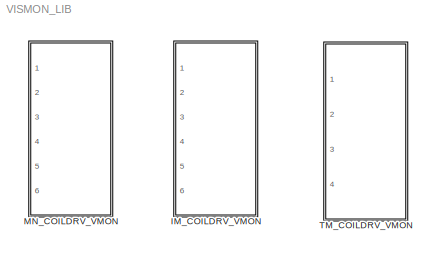
MODEL VISMON_LIB
KIND library
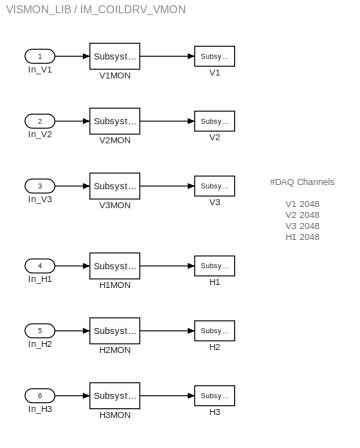
BLOCK [SubSystem] IM_COILDRV_VMON
  Ports = [6]
  RequestExecContextInheritance = off
  SID = 28
  Variant = off
BLOCK [Reference] IM_COILDRV_VMON/H1  REF=cdsTP/Subsystem
  AttributesFormatString = %<Tag>
  Ports = [1]
  SID = 16
  SourceBlock = cdsTP/Subsystem
  SourceType = SubSystem
  Tag = Test Point
BLOCK [Reference] IM_COILDRV_VMON/H1MON  REF=cdsEpicsOut/Subsystem
  AttributesFormatString = %<Tag>
  Description = Purpose:                                          \nOutput a FE signal to an EPICS channel.           \n                                                  \nOperation:                                        \nTakes input value and passes it to EPICS record.  \n                                                  \nUsage:                                            \nName the part with the desired EPICS...<+14ch>  <repeated x16 — deduplicated; at blocks: H1MON, H2MON, H3MON, V1MON, V2MON, V3MON, H4MON>
  Ports = [1, 1]
  SID = 17
  SourceBlock = cdsEpicsOut/Subsystem
  SourceType = SubSystem
  Tag = cdsEpicsOutput
BLOCK [Reference] IM_COILDRV_VMON/H2  REF=cdsTP/Subsystem
  AttributesFormatString = %<Tag>
  Ports = [1]
  SID = 18
  SourceBlock = cdsTP/Subsystem
  SourceType = SubSystem
  Tag = Test Point
BLOCK [Reference] IM_COILDRV_VMON/H2MON  REF=cdsEpicsOut/Subsystem
  AttributesFormatString = %<Tag>
  Ports = [1, 1]
  SID = 19
  SourceBlock = cdsEpicsOut/Subsystem
  SourceType = SubSystem
  Tag = cdsEpicsOutput
BLOCK [Reference] IM_COILDRV_VMON/H3  REF=cdsTP/Subsystem
  AttributesFormatString = %<Tag>
  Ports = [1]
  SID = 20
  SourceBlock = cdsTP/Subsystem
  SourceType = SubSystem
  Tag = Test Point
BLOCK [Reference] IM_COILDRV_VMON/H3MON  REF=cdsEpicsOut/Subsystem
  AttributesFormatString = %<Tag>
  Ports = [1, 1]
  SID = 21
  SourceBlock = cdsEpicsOut/Subsystem
  SourceType = SubSystem
  Tag = cdsEpicsOutput
BLOCK [Inport] IM_COILDRV_VMON/In_H1
  IconDisplay = Port number
  Port = 4
  SID = 32
BLOCK [Inport] IM_COILDRV_VMON/In_H2
  IconDisplay = Port number
  Port = 5
  SID = 33
BLOCK [Inport] IM_COILDRV_VMON/In_H3
  IconDisplay = Port number
  Port = 6
  SID = 34
BLOCK [Inport] IM_COILDRV_VMON/In_V1
  IconDisplay = Port number
  SID = 29
BLOCK [Inport] IM_COILDRV_VMON/In_V2
  IconDisplay = Port number
  Port = 2
  SID = 30
BLOCK [Inport] IM_COILDRV_VMON/In_V3
  IconDisplay = Port number
  Port = 3
  SID = 31
BLOCK [Reference] IM_COILDRV_VMON/V1  REF=cdsTP/Subsystem
  AttributesFormatString = %<Tag>
  Ports = [1]
  SID = 22
  SourceBlock = cdsTP/Subsystem
  SourceType = SubSystem
  Tag = Test Point
BLOCK [Reference] IM_COILDRV_VMON/V1MON  REF=cdsEpicsOut/Subsystem
  AttributesFormatString = %<Tag>
  Ports = [1, 1]
  SID = 23
  SourceBlock = cdsEpicsOut/Subsystem
  SourceType = SubSystem
  Tag = cdsEpicsOutput
BLOCK [Reference] IM_COILDRV_VMON/V2  REF=cdsTP/Subsystem
  AttributesFormatString = %<Tag>
  Ports = [1]
  SID = 24
  SourceBlock = cdsTP/Subsystem
  SourceType = SubSystem
  Tag = Test Point
BLOCK [Reference] IM_COILDRV_VMON/V2MON  REF=cdsEpicsOut/Subsystem
  AttributesFormatString = %<Tag>
  Ports = [1, 1]
  SID = 25
  SourceBlock = cdsEpicsOut/Subsystem
  SourceType = SubSystem
  Tag = cdsEpicsOutput
BLOCK [Reference] IM_COILDRV_VMON/V3  REF=cdsTP/Subsystem
  AttributesFormatString = %<Tag>
  Ports = [1]
  SID = 26
  SourceBlock = cdsTP/Subsystem
  SourceType = SubSystem
  Tag = Test Point
BLOCK [Reference] IM_COILDRV_VMON/V3MON  REF=cdsEpicsOut/Subsystem
  AttributesFormatString = %<Tag>
  Ports = [1, 1]
  SID = 27
  SourceBlock = cdsEpicsOut/Subsystem
  SourceType = SubSystem
  Tag = cdsEpicsOutput
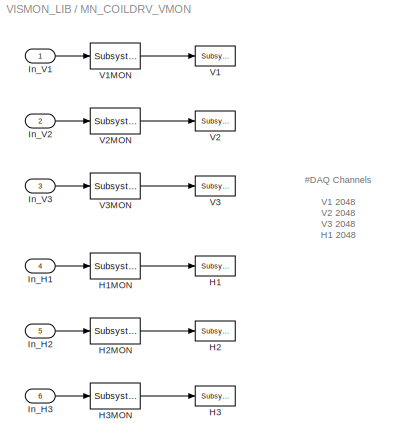
BLOCK [SubSystem] MN_COILDRV_VMON
  Ports = [6]
  RequestExecContextInheritance = off
  SID = 35
  Variant = off
BLOCK [Reference] MN_COILDRV_VMON/H1  REF=cdsTP/Subsystem
  AttributesFormatString = %<Tag>
  Ports = [1]
  SID = 42
  SourceBlock = cdsTP/Subsystem
  SourceType = SubSystem
  Tag = Test Point
BLOCK [Reference] MN_COILDRV_VMON/H1MON  REF=cdsEpicsOut/Subsystem
  AttributesFormatString = %<Tag>
  Ports = [1, 1]
  SID = 43
  SourceBlock = cdsEpicsOut/Subsystem
  SourceType = SubSystem
  Tag = cdsEpicsOutput
BLOCK [Reference] MN_COILDRV_VMON/H2  REF=cdsTP/Subsystem
  AttributesFormatString = %<Tag>
  Ports = [1]
  SID = 44
  SourceBlock = cdsTP/Subsystem
  SourceType = SubSystem
  Tag = Test Point
BLOCK [Reference] MN_COILDRV_VMON/H2MON  REF=cdsEpicsOut/Subsystem
  AttributesFormatString = %<Tag>
  Ports = [1, 1]
  SID = 45
  SourceBlock = cdsEpicsOut/Subsystem
  SourceType = SubSystem
  Tag = cdsEpicsOutput
BLOCK [Reference] MN_COILDRV_VMON/H3  REF=cdsTP/Subsystem
  AttributesFormatString = %<Tag>
  Ports = [1]
  SID = 46
  SourceBlock = cdsTP/Subsystem
  SourceType = SubSystem
  Tag = Test Point
BLOCK [Reference] MN_COILDRV_VMON/H3MON  REF=cdsEpicsOut/Subsystem
  AttributesFormatString = %<Tag>
  Ports = [1, 1]
  SID = 47
  SourceBlock = cdsEpicsOut/Subsystem
  SourceType = SubSystem
  Tag = cdsEpicsOutput
BLOCK [Inport] MN_COILDRV_VMON/In_H1
  IconDisplay = Port number
  Port = 4
  SID = 39
BLOCK [Inport] MN_COILDRV_VMON/In_H2
  IconDisplay = Port number
  Port = 5
  SID = 40
BLOCK [Inport] MN_COILDRV_VMON/In_H3
  IconDisplay = Port number
  Port = 6
  SID = 41
BLOCK [Inport] MN_COILDRV_VMON/In_V1
  IconDisplay = Port number
  SID = 36
BLOCK [Inport] MN_COILDRV_VMON/In_V2
  IconDisplay = Port number
  Port = 2
  SID = 37
BLOCK [Inport] MN_COILDRV_VMON/In_V3
  IconDisplay = Port number
  Port = 3
  SID = 38
BLOCK [Reference] MN_COILDRV_VMON/V1  REF=cdsTP/Subsystem
  AttributesFormatString = %<Tag>
  Ports = [1]
  SID = 48
  SourceBlock = cdsTP/Subsystem
  SourceType = SubSystem
  Tag = Test Point
BLOCK [Reference] MN_COILDRV_VMON/V1MON  REF=cdsEpicsOut/Subsystem
  AttributesFormatString = %<Tag>
  Ports = [1, 1]
  SID = 49
  SourceBlock = cdsEpicsOut/Subsystem
  SourceType = SubSystem
  Tag = cdsEpicsOutput
BLOCK [Reference] MN_COILDRV_VMON/V2  REF=cdsTP/Subsystem
  AttributesFormatString = %<Tag>
  Ports = [1]
  SID = 50
  SourceBlock = cdsTP/Subsystem
  SourceType = SubSystem
  Tag = Test Point
BLOCK [Reference] MN_COILDRV_VMON/V2MON  REF=cdsEpicsOut/Subsystem
  AttributesFormatString = %<Tag>
  Ports = [1, 1]
  SID = 51
  SourceBlock = cdsEpicsOut/Subsystem
  SourceType = SubSystem
  Tag = cdsEpicsOutput
BLOCK [Reference] MN_COILDRV_VMON/V3  REF=cdsTP/Subsystem
  AttributesFormatString = %<Tag>
  Ports = [1]
  SID = 52
  SourceBlock = cdsTP/Subsystem
  SourceType = SubSystem
  Tag = Test Point
BLOCK [Reference] MN_COILDRV_VMON/V3MON  REF=cdsEpicsOut/Subsystem
  AttributesFormatString = %<Tag>
  Ports = [1, 1]
  SID = 53
  SourceBlock = cdsEpicsOut/Subsystem
  SourceType = SubSystem
  Tag = cdsEpicsOutput
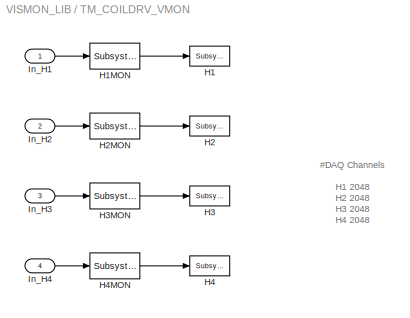
BLOCK [SubSystem] TM_COILDRV_VMON
  Ports = [4]
  RequestExecContextInheritance = off
  SID = 54
  Variant = off
BLOCK [Reference] TM_COILDRV_VMON/H1  REF=cdsTP/Subsystem
  AttributesFormatString = %<Tag>
  Ports = [1]
  SID = 77
  SourceBlock = cdsTP/Subsystem
  SourceType = SubSystem
  Tag = Test Point
BLOCK [Reference] TM_COILDRV_VMON/H1MON  REF=cdsEpicsOut/Subsystem
  AttributesFormatString = %<Tag>
  Ports = [1, 1]
  SID = 78
  SourceBlock = cdsEpicsOut/Subsystem
  SourceType = SubSystem
  Tag = cdsEpicsOutput
BLOCK [Reference] TM_COILDRV_VMON/H2  REF=cdsTP/Subsystem
  AttributesFormatString = %<Tag>
  Ports = [1]
  SID = 79
  SourceBlock = cdsTP/Subsystem
  SourceType = SubSystem
  Tag = Test Point
BLOCK [Reference] TM_COILDRV_VMON/H2MON  REF=cdsEpicsOut/Subsystem
  AttributesFormatString = %<Tag>
  Ports = [1, 1]
  SID = 80
  SourceBlock = cdsEpicsOut/Subsystem
  SourceType = SubSystem
  Tag = cdsEpicsOutput
BLOCK [Reference] TM_COILDRV_VMON/H3  REF=cdsTP/Subsystem
  AttributesFormatString = %<Tag>
  Ports = [1]
  SID = 81
  SourceBlock = cdsTP/Subsystem
  SourceType = SubSystem
  Tag = Test Point
BLOCK [Reference] TM_COILDRV_VMON/H3MON  REF=cdsEpicsOut/Subsystem
  AttributesFormatString = %<Tag>
  Ports = [1, 1]
  SID = 82
  SourceBlock = cdsEpicsOut/Subsystem
  SourceType = SubSystem
  Tag = cdsEpicsOutput
BLOCK [Reference] TM_COILDRV_VMON/H4  REF=cdsTP/Subsystem
  AttributesFormatString = %<Tag>
  Ports = [1]
  SID = 83
  SourceBlock = cdsTP/Subsystem
  SourceType = SubSystem
  Tag = Test Point
BLOCK [Reference] TM_COILDRV_VMON/H4MON  REF=cdsEpicsOut/Subsystem
  AttributesFormatString = %<Tag>
  Ports = [1, 1]
  SID = 84
  SourceBlock = cdsEpicsOut/Subsystem
  SourceType = SubSystem
  Tag = cdsEpicsOutput
BLOCK [Inport] TM_COILDRV_VMON/In_H1
  IconDisplay = Port number
  SID = 73
BLOCK [Inport] TM_COILDRV_VMON/In_H2
  IconDisplay = Port number
  Port = 2
  SID = 74
BLOCK [Inport] TM_COILDRV_VMON/In_H3
  IconDisplay = Port number
  Port = 3
  SID = 75
BLOCK [Inport] TM_COILDRV_VMON/In_H4
  IconDisplay = Port number
  Port = 4
  SID = 76
ANNOTATION IM_COILDRV_VMON: #DAQ Channels\n\nV1 2048\nV2 2048\nV3 2048\nH1 2048\nH2 2048\nH3 2048\n
ANNOTATION MN_COILDRV_VMON: #DAQ Channels\n\nV1 2048\nV2 2048\nV3 2048\nH1 2048\nH2 2048\nH3 2048\n
ANNOTATION TM_COILDRV_VMON: #DAQ Channels\n\nH1 2048\nH2 2048\nH3 2048\nH4 2048\n
LINE IM_COILDRV_VMON/H1MON:1 -> IM_COILDRV_VMON/H1:1
LINE IM_COILDRV_VMON/H2MON:1 -> IM_COILDRV_VMON/H2:1
LINE IM_COILDRV_VMON/H3MON:1 -> IM_COILDRV_VMON/H3:1
LINE IM_COILDRV_VMON/In_H1:1 -> IM_COILDRV_VMON/H1MON:1
LINE IM_COILDRV_VMON/In_H2:1 -> IM_COILDRV_VMON/H2MON:1
LINE IM_COILDRV_VMON/In_H3:1 -> IM_COILDRV_VMON/H3MON:1
LINE IM_COILDRV_VMON/In_V1:1 -> IM_COILDRV_VMON/V1MON:1
LINE IM_COILDRV_VMON/In_V2:1 -> IM_COILDRV_VMON/V2MON:1
LINE IM_COILDRV_VMON/In_V3:1 -> IM_COILDRV_VMON/V3MON:1
LINE IM_COILDRV_VMON/V1MON:1 -> IM_COILDRV_VMON/V1:1
LINE IM_COILDRV_VMON/V2MON:1 -> IM_COILDRV_VMON/V2:1
LINE IM_COILDRV_VMON/V3MON:1 -> IM_COILDRV_VMON/V3:1
LINE MN_COILDRV_VMON/H1MON:1 -> MN_COILDRV_VMON/H1:1
LINE MN_COILDRV_VMON/H2MON:1 -> MN_COILDRV_VMON/H2:1
LINE MN_COILDRV_VMON/H3MON:1 -> MN_COILDRV_VMON/H3:1
LINE MN_COILDRV_VMON/In_H1:1 -> MN_COILDRV_VMON/H1MON:1
LINE MN_COILDRV_VMON/In_H2:1 -> MN_COILDRV_VMON/H2MON:1
LINE MN_COILDRV_VMON/In_H3:1 -> MN_COILDRV_VMON/H3MON:1
LINE MN_COILDRV_VMON/In_V1:1 -> MN_COILDRV_VMON/V1MON:1
LINE MN_COILDRV_VMON/In_V2:1 -> MN_COILDRV_VMON/V2MON:1
LINE MN_COILDRV_VMON/In_V3:1 -> MN_COILDRV_VMON/V3MON:1
LINE MN_COILDRV_VMON/V1MON:1 -> MN_COILDRV_VMON/V1:1
LINE MN_COILDRV_VMON/V2MON:1 -> MN_COILDRV_VMON/V2:1
LINE MN_COILDRV_VMON/V3MON:1 -> MN_COILDRV_VMON/V3:1
LINE TM_COILDRV_VMON/H1MON:1 -> TM_COILDRV_VMON/H1:1
LINE TM_COILDRV_VMON/H2MON:1 -> TM_COILDRV_VMON/H2:1
LINE TM_COILDRV_VMON/H3MON:1 -> TM_COILDRV_VMON/H3:1
LINE TM_COILDRV_VMON/H4MON:1 -> TM_COILDRV_VMON/H4:1
LINE TM_COILDRV_VMON/In_H1:1 -> TM_COILDRV_VMON/H1MON:1
LINE TM_COILDRV_VMON/In_H2:1 -> TM_COILDRV_VMON/H2MON:1
LINE TM_COILDRV_VMON/In_H3:1 -> TM_COILDRV_VMON/H3MON:1
LINE TM_COILDRV_VMON/In_H4:1 -> TM_COILDRV_VMON/H4MON:1
